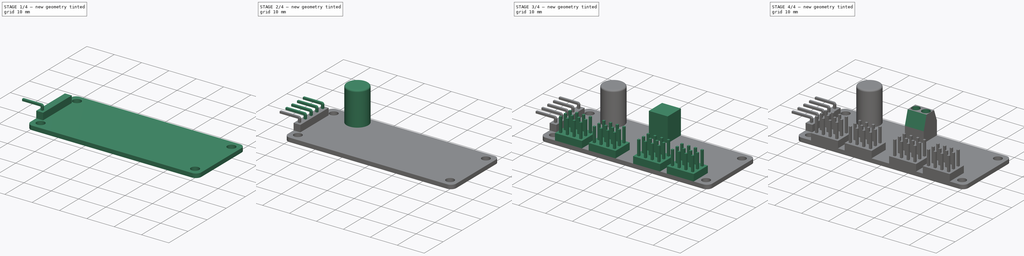
[diagram: build sequence overview — one tinted view per stage of 4, left to right]
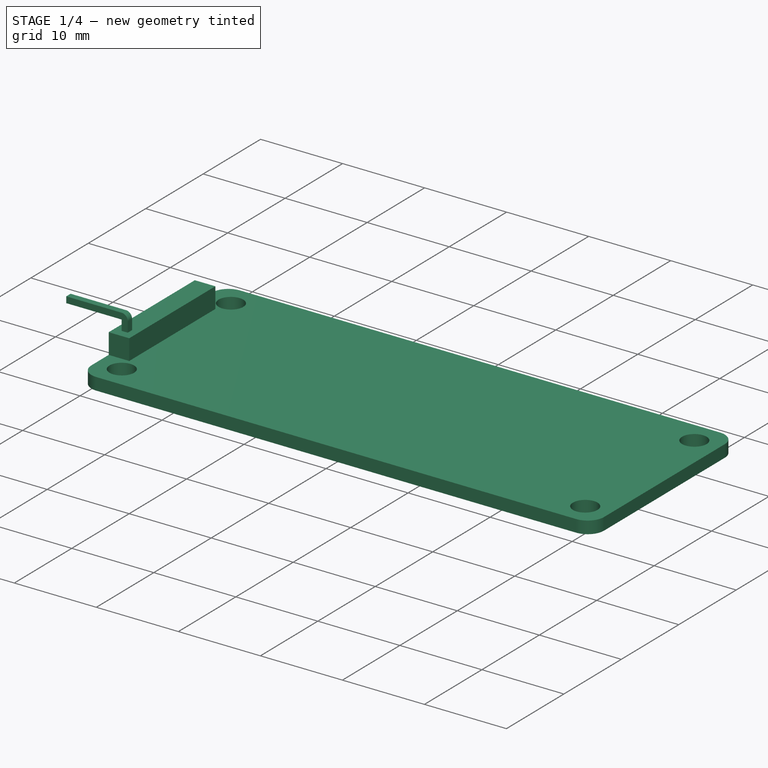
[diagram: stage 1 of 4 — iso view after this stage's code; geometry added in this stage tinted green]
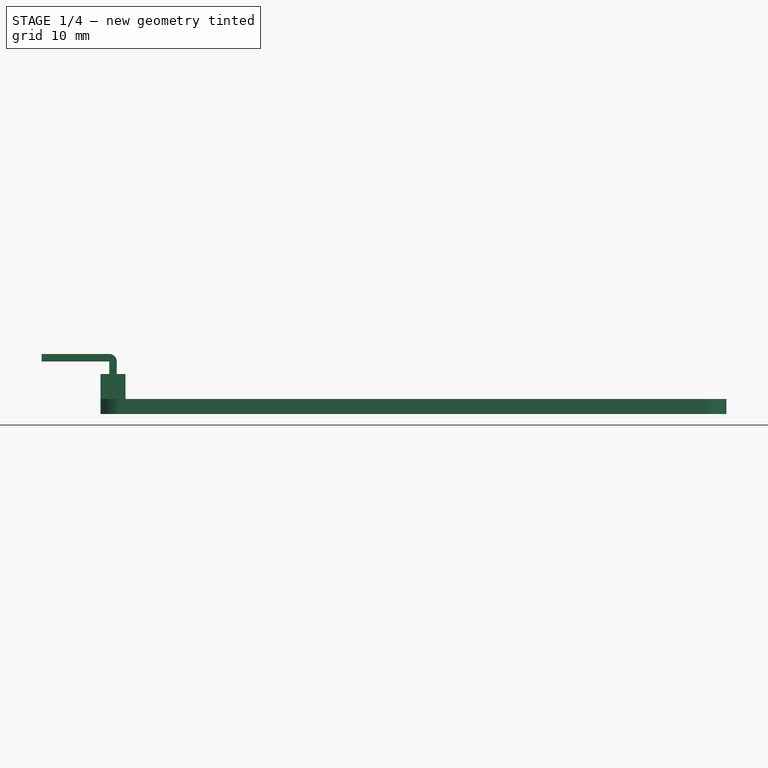
[diagram: stage 1 of 4 — front view after this stage's code; geometry added in this stage tinted green]
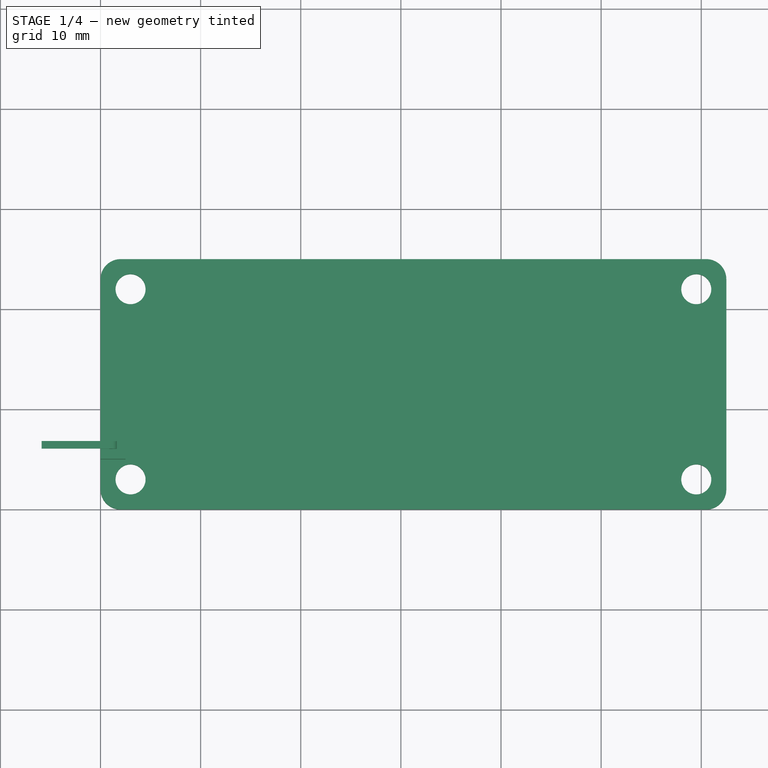
[diagram: stage 1 of 4 — top view after this stage's code; geometry added in this stage tinted green]
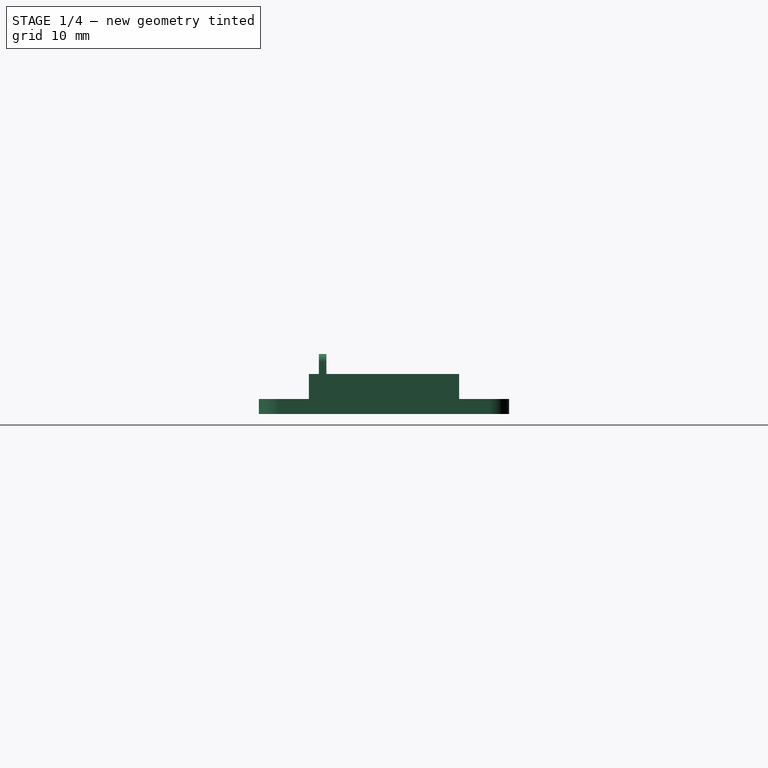
[diagram: stage 1 of 4 — right view after this stage's code; geometry added in this stage tinted green]
FCSTD DOCUMENT  (FreeCAD 1.0R39285 (Git))
Label: Servo-PCB
License: All rights reserved
LicenseURL: https://en.wikipedia.org/wiki/All_rights_reserved
objects: Sketcher::SketchObject×8, PartDesign::Pad×7, PartDesign::LinearPattern×5, PartDesign::Chamfer×2, PartDesign::Fillet×1, PartDesign::MultiTransform×1, PartDesign::Pocket×1, PartDesign::Body×1
note: 62 computed .brp shape members not serialized (recipe doc carries the construction recipe); baked Part::Feature solids carry a one-line shape summary decoded from their .brp

FEATURE [Sketcher::SketchObject] Sketch
  ArcFitTolerance = 1e-06
  AttachmentSupport = -> [XY_Plane]
  FullyConstrained = true
  MakeInternals = false
  MapMode = 5
  sketch-geometry (20):
    g0: LineSegment StartX=2 StartY=0 StartZ=0 EndX=60.5 EndY=0 EndZ=0
    g1: LineSegment StartX=62.5 StartY=2 StartZ=0 EndX=62.5 EndY=23 EndZ=0
    g2: LineSegment StartX=60.5 StartY=25 StartZ=0 EndX=2 EndY=25 EndZ=0
    g3: LineSegment StartX=0 StartY=23 StartZ=0 EndX=0 EndY=2 EndZ=0
    g4: ArcOfCircle CenterX=2 CenterY=23 CenterZ=0 NormalX=0 NormalY=0 NormalZ=1 AngleXU=0 Radius=2 StartAngle=1.5708 EndAngle=3.14159
    g5: GeomPoint [constr] X=0 Y=25 Z=0
    g6: ArcOfCircle CenterX=2 CenterY=2 CenterZ=0 NormalX=0 NormalY=0 NormalZ=1 AngleXU=0 Radius=2 StartAngle=3.14159 EndAngle=4.71239
    g7: GeomPoint [constr] X=0 Y=0 Z=0
    g8: ArcOfCircle CenterX=60.5 CenterY=2 CenterZ=0 NormalX=0 NormalY=0 NormalZ=1 AngleXU=0 Radius=2 StartAngle=4.71239 EndAngle=6.28319
    g9: GeomPoint [constr] X=62.5 Y=0 Z=0
    g10: ArcOfCircle CenterX=60.5 CenterY=23 CenterZ=0 NormalX=0 NormalY=0 NormalZ=1 AngleXU=0 Radius=2 StartAngle=0 EndAngle=1.5708
    g11: GeomPoint [constr] X=62.5 Y=25 Z=0
    g12: Circle CenterX=3 CenterY=3 CenterZ=0 NormalX=0 NormalY=0 NormalZ=1 AngleXU=0 Radius=1.5
    g13: Circle CenterX=3 CenterY=22 CenterZ=0 NormalX=0 NormalY=0 NormalZ=1 AngleXU=0 Radius=1.5
    g14: Circle CenterX=59.5 CenterY=22 CenterZ=0 NormalX=0 NormalY=0 NormalZ=1 AngleXU=0 Radius=1.5
    g15: Circle CenterX=59.5 CenterY=3 CenterZ=0 NormalX=0 NormalY=0 NormalZ=1 AngleXU=0 Radius=1.5
    g16: LineSegment [constr] StartX=1.5 StartY=3 StartZ=0 EndX=0 EndY=3 EndZ=0
    g17: LineSegment [constr] StartX=61 StartY=3 StartZ=0 EndX=62.5 EndY=3 EndZ=0
    g18: LineSegment [constr] StartX=3 StartY=1.5 StartZ=0 EndX=3 EndY=0 EndZ=0
    g19: LineSegment [constr] StartX=3 StartY=23.5 StartZ=0 EndX=3 EndY=25 EndZ=0
  constraints (55):
    c: Horizontal(g0)
    c: Horizontal(g2)
    c: Vertical(g1)
    c: Vertical(g3)
    c: Coincident(g7,g-1)
    c: PointOnObject(g5,g2)
    c: PointOnObject(g5,g3)
    c: Tangent(g2,g4) = -1.5708
    c: Tangent(g3,g4) = -1.5708
    c: PointOnObject(g7,g3)
    c: PointOnObject(g7,g0)
    c: Tangent(g3,g6) = -1.5708
    c: Tangent(g0,g6) = -1.5708
    c: PointOnObject(g9,g0)
    c: PointOnObject(g9,g1)
    c: Tangent(g0,g8) = -1.5708
    c: Tangent(g1,g8) = -1.5708
    c: PointOnObject(g11,g1)
    c: PointOnObject(g11,g2)
    c: Tangent(g1,g10) = -1.5708
    c: Tangent(g2,g10) = -1.5708
    c: Equal(g4,g10)
    c: Equal(g10,g8)
    c: Equal(g8,g6)
    c: DistanceY(g0,g2) = 25
    c: DistanceX(g3,g1) = 62.5
    c: Diameter(g4) = 4
    c: Equal(g15,g14)
    c: Equal(g14,g13)
    c: Equal(g13,g12)
    c: Vertical(g12,g13)
    c: Vertical(g14,g15)
    c: Horizontal(g15,g12)
    c: Horizontal(g13,g14)
    c: Diameter(g12) = 3
    c: PointOnObject(g16,g12)
    c: PointOnObject(g16,g3)
    c: Horizontal(g16)
    c: PointOnObject(g17,g15)
    c: PointOnObject(g17,g1)
    c: Horizontal(g17)
    c: Horizontal(g17,g15)
    c: Horizontal(g16,g12)
    c: Equal(g16,g17)
    c: DistanceX(g17,g17) = 1.5
    c: PointOnObject(g18,g12)
    c: PointOnObject(g18,g0)
    c: Vertical(g18)
    c: Vertical(g18,g12)
    c: PointOnObject(g19,g13)
    c: PointOnObject(g19,g2)
    c: Vertical(g19)
    c: Vertical(g19,g13)
    c: DistanceY(g19,g19) = 1.5
    c: Equal(g18,g19)
FEATURE [PartDesign::Pad] Pad
  Direction = (0,0,1)
  Length = 1.5
  Length2 = 10
  Profile = -> Sketch
  ReferenceAxis = -> Sketch [N_Axis]
  Refine = true
  Suppressed = false
  Type = 0
FEATURE [Sketcher::SketchObject] Sketch001
  ArcFitTolerance = 1e-06
  AttachmentSupport = -> [Pad]
  ExternalGeometry = -> [Pad]
  FullyConstrained = true
  MakeInternals = false
  MapMode = 5
  Placement = pos=(0,0,1.5) rot=(0,0,1;0rad)
  sketch-geometry (6):
    g0: LineSegment StartX=2e-16 StartY=20 StartZ=0 EndX=2e-16 EndY=5 EndZ=0
    g1: LineSegment StartX=2e-16 StartY=5 StartZ=0 EndX=2.5 EndY=5 EndZ=0
    g2: LineSegment StartX=2.5 StartY=5 StartZ=0 EndX=2.5 EndY=20 EndZ=0
    g3: LineSegment StartX=2.5 StartY=20 StartZ=0 EndX=0 EndY=20 EndZ=0
    g4: GeomPoint [constr] X=0 Y=12.5 Z=0
    g5: GeomPoint [constr] X=0 Y=12.5 Z=0
  constraints (13):
    c: Coincident(g0,g1)
    c: Coincident(g1,g2)
    c: Coincident(g2,g3)
    c: Coincident(g3,g0)
    c: Vertical(g0)
    c: Vertical(g2)
    c: Horizontal(g1)
    c: Horizontal(g3)
    c: Distance(g0,g2) = 2.5
    c: Distance(g1,g3) = 15
    c: Symmetric(g0,g0,g4)
    c: Symmetric(g-3,g-3,g5)
    c: Coincident(g4,g5)
FEATURE [PartDesign::Pad] Pad001
  BaseFeature = -> Pad
  Direction = (0,0,1)
  Length = 2.5
  Length2 = 10
  Profile = -> Sketch001
  ReferenceAxis = -> Sketch001 [N_Axis]
  Refine = true
  Suppressed = false
  Type = 0
FEATURE [Sketcher::SketchObject] Sketch002
  ArcFitTolerance = 1e-06
  AttachmentOffset = pos=(0,0,-6) rot=(0,0,1;0rad)
  AttachmentSupport = -> [XZ_Plane]
  ExternalGeometry = -> [Pad001]
  FullyConstrained = true
  MakeInternals = false
  MapMode = 5
  Placement = pos=(0,6,-1.3e-15) rot=(1,0,0;1.5708rad)
  sketch-geometry (8):
    g0: LineSegment StartX=0.875 StartY=4 StartZ=0 EndX=1.625 EndY=4 EndZ=0
    g1: LineSegment StartX=1.625 StartY=4 StartZ=0 EndX=1.625 EndY=5.25 EndZ=0
    g2: LineSegment StartX=0.875 StartY=5.25 StartZ=0 EndX=0.875 EndY=4 EndZ=0
    g3: LineSegment StartX=-5.875 StartY=6 StartZ=0 EndX=-5.875 EndY=5.25 EndZ=0
    g4: LineSegment StartX=-5.875 StartY=5.25 StartZ=0 EndX=0.875 EndY=5.25 EndZ=0
    g5: LineSegment StartX=0.875 StartY=6 StartZ=0 EndX=-5.875 EndY=6 EndZ=0
    g6: ArcOfCircle CenterX=0.875 CenterY=5.25 CenterZ=0 NormalX=0 NormalY=0 NormalZ=1 AngleXU=0 Radius=0.75 StartAngle=1e-16 EndAngle=1.5708
    g7: GeomPoint [constr] X=1.25 Y=4 Z=0
  constraints (21):
    c: Coincident(g0,g1)
    c: Coincident(g2,g0)
    c: Horizontal(g0)
    c: Vertical(g1)
    c: Vertical(g2)
    c: Coincident(g3,g4)
    c: Coincident(g5,g3)
    c: Vertical(g3)
    c: Horizontal(g5)
    c: Coincident(g2,g4)
    c: Coincident(g2,g6)
    c: Coincident(g5,g6)
    c: Coincident(g1,g6)
    c: Horizontal(g4)
    c: DistanceY(g0,g5) = 2
    c: DistanceY(g3,g3) = 0.75
    c: Vertical(g2,g5)
    c: Horizontal(g1,g2)
    c: Symmetric(g0,g0,g7)
    c: Symmetric(g-3,g-3,g7)
    c: DistanceX(g3,g1) = 7.5
FEATURE [PartDesign::Pad] Pad002
  BaseFeature = -> Pad001
  Direction = (0,-1,2e-16)
  Length = 0.75
  Length2 = 10
  Profile = -> Sketch002
  ReferenceAxis = -> Sketch002 [N_Axis]
  Refine = true
  Reversed = true
  Suppressed = false
  Type = 0
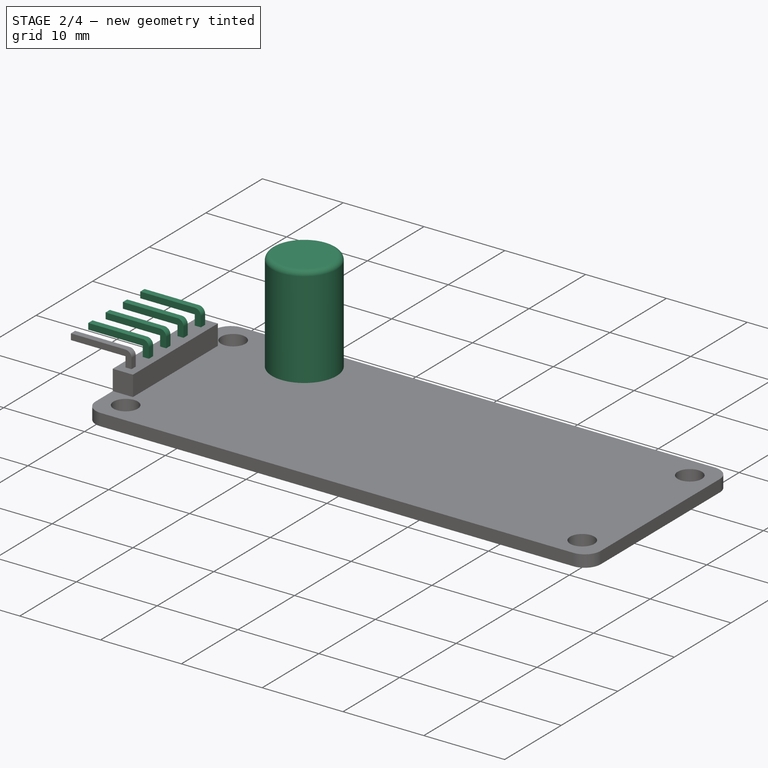
[diagram: stage 2 of 4 — iso view after this stage's code; geometry added in this stage tinted green]
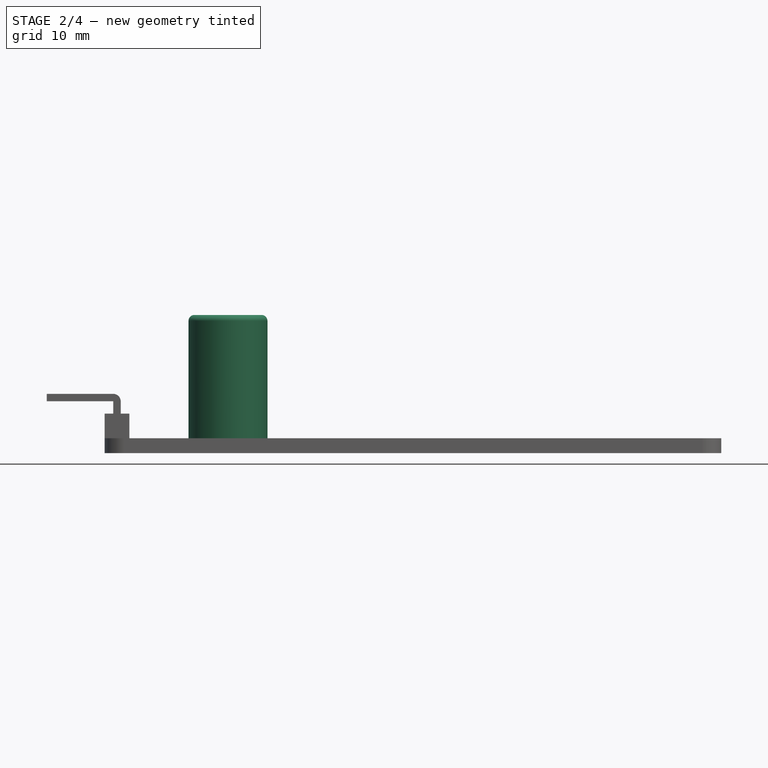
[diagram: stage 2 of 4 — front view after this stage's code; geometry added in this stage tinted green]
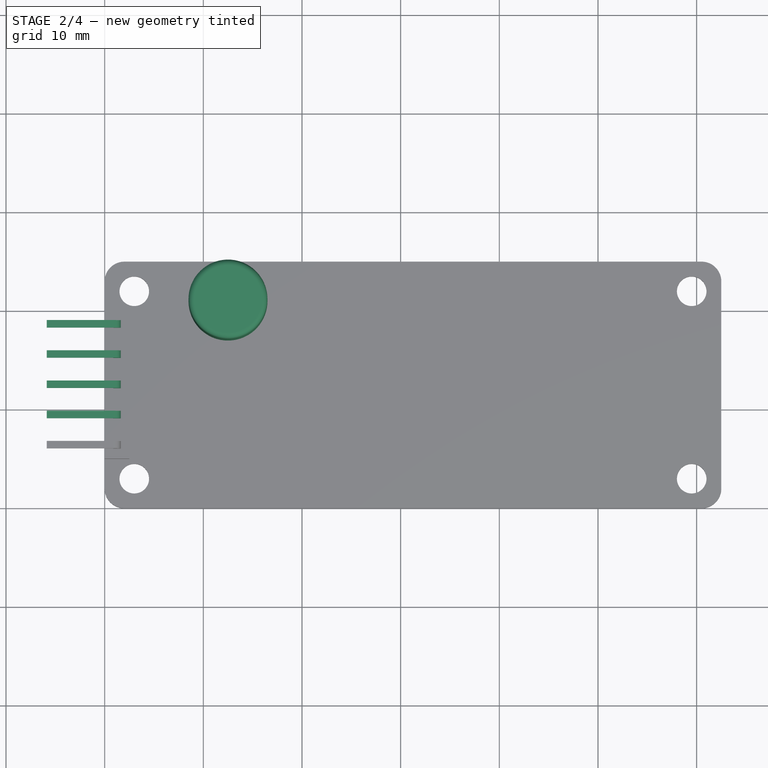
[diagram: stage 2 of 4 — top view after this stage's code; geometry added in this stage tinted green]
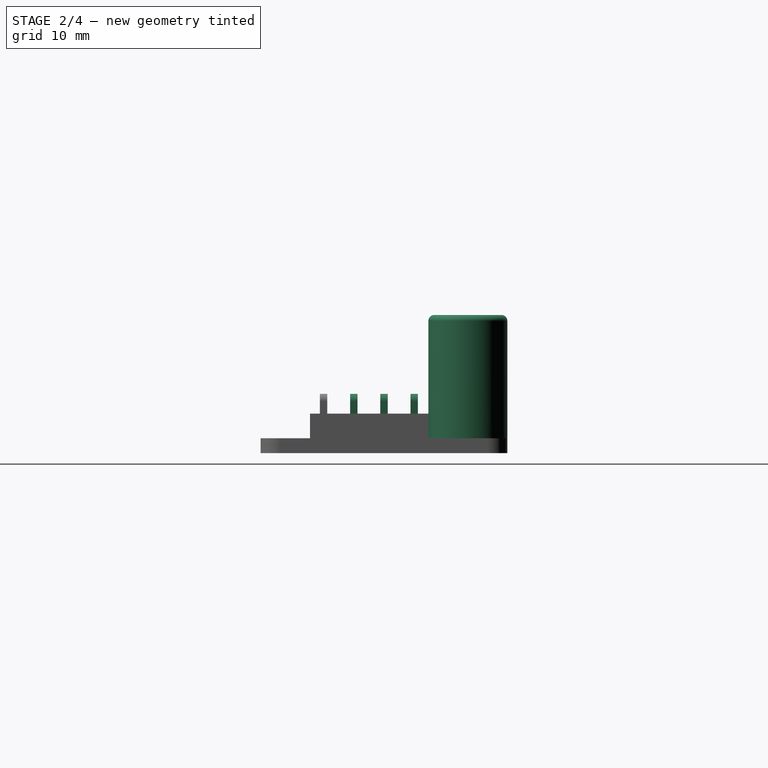
[diagram: stage 2 of 4 — right view after this stage's code; geometry added in this stage tinted green]
FEATURE [PartDesign::LinearPattern] LinearPattern
  BaseFeature = -> Pad002
  Direction = -> Sketch002 [N_Axis]
  Length = 12.25
  Mode = 0
  Occurrences = 5
  Offset = 3.0625
  Originals = -> [Pad002]
  Refine = true
  Reversed = true
  Suppressed = false
  TransformMode = 0
FEATURE [Sketcher::SketchObject] Sketch003
  ArcFitTolerance = 1e-06
  AttachmentSupport = -> [LinearPattern]
  ExternalGeometry = -> [LinearPattern]
  FullyConstrained = true
  MakeInternals = false
  MapMode = 5
  Placement = pos=(0,0,1.5) rot=(0,0,1;0rad)
  sketch-geometry (4):
    g0: Circle CenterX=12.5 CenterY=21 CenterZ=0 NormalX=0 NormalY=0 NormalZ=1 AngleXU=0 Radius=4
    g1: GeomPoint X=12.5 Y=25 Z=0
    g2: GeomPoint X=12.5 Y=25 Z=0
    g3: GeomPoint X=8.5 Y=21 Z=0
  constraints (8):
    c: Diameter(g0) = 8
    c: PointOnObject(g1,g-3)
    c: PointOnObject(g2,g0)
    c: Vertical(g2,g0)
    c: Coincident(g2,g1)
    c: PointOnObject(g3,g0)
    c: Horizontal(g3,g0)
    c: DistanceX(g-1,g3) = 8.5
FEATURE [PartDesign::Pad] Pad003
  BaseFeature = -> LinearPattern
  Direction = (0,0,1)
  Length = 12.5
  Length2 = 10
  Profile = -> Sketch003
  ReferenceAxis = -> Sketch003 [N_Axis]
  Refine = true
  Suppressed = false
  Type = 0
FEATURE [PartDesign::Fillet] Fillet
  Base = -> Pad003 [Edge53]
  BaseFeature = -> Pad003
  Radius = 0.6
  Refine = true
  SupportTransform = false
  Suppressed = false
  UseAllEdges = false
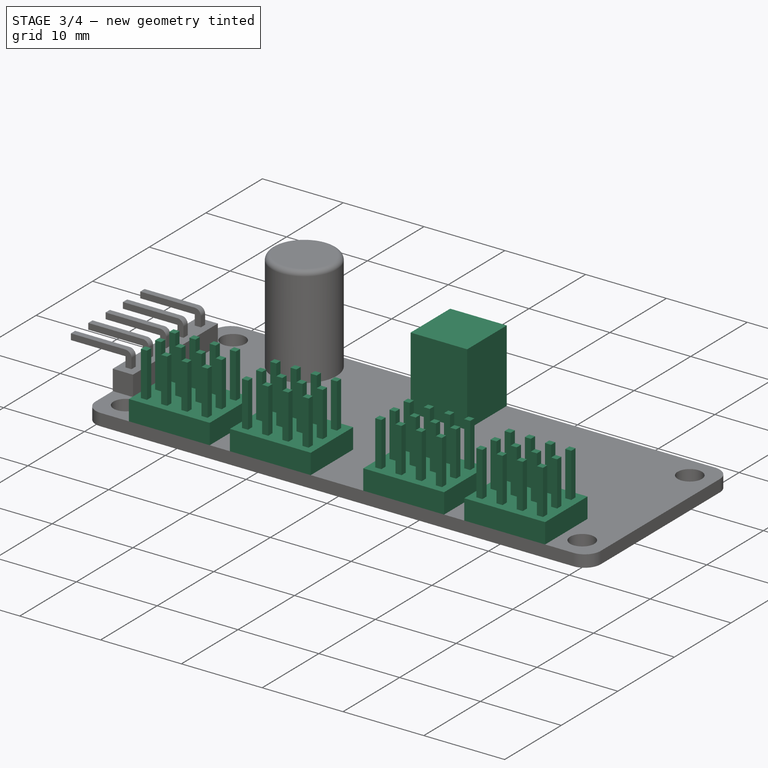
[diagram: stage 3 of 4 — iso view after this stage's code; geometry added in this stage tinted green]
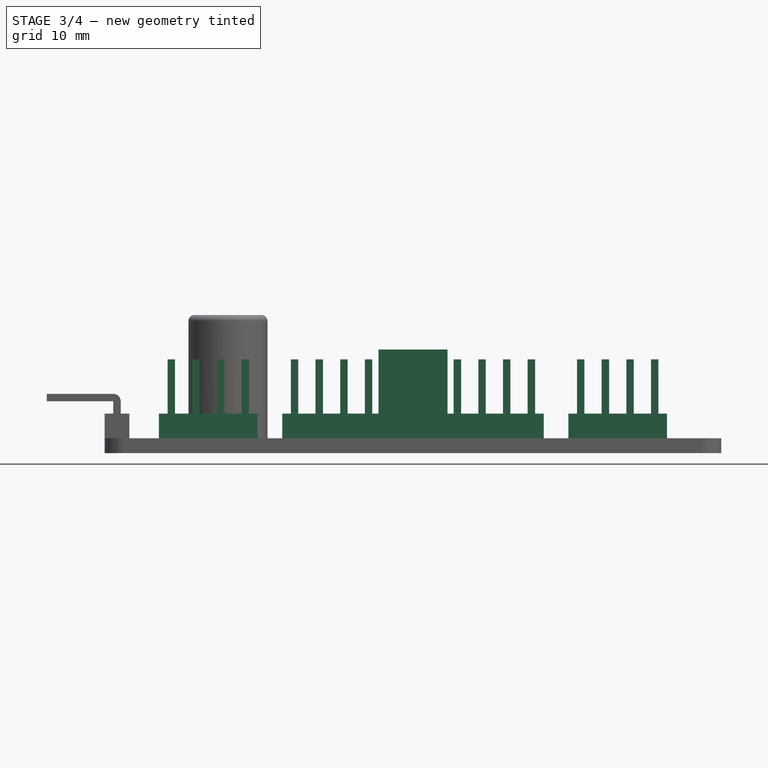
[diagram: stage 3 of 4 — front view after this stage's code; geometry added in this stage tinted green]
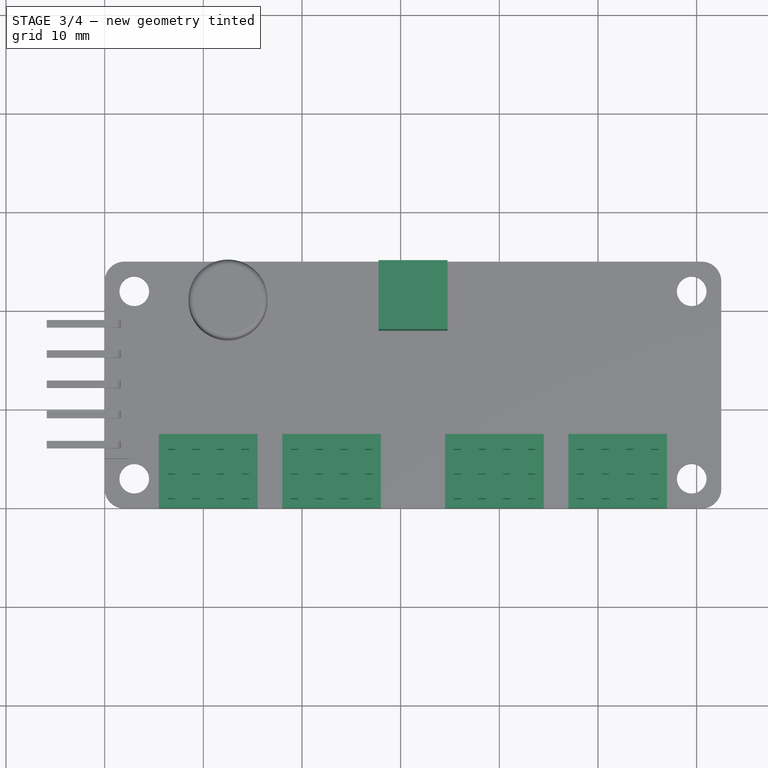
[diagram: stage 3 of 4 — top view after this stage's code; geometry added in this stage tinted green]
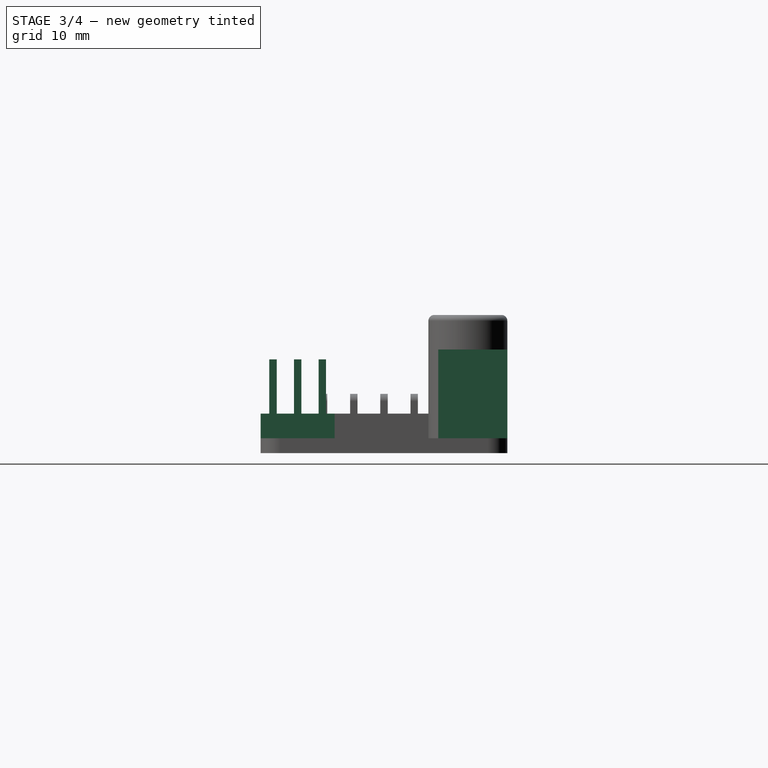
[diagram: stage 3 of 4 — right view after this stage's code; geometry added in this stage tinted green]
FEATURE [Sketcher::SketchObject] Sketch004
  ArcFitTolerance = 1e-06
  AttachmentOffset = pos=(5.5,0,0) rot=(0,0,1;0rad)
  AttachmentSupport = -> [Fillet]
  FullyConstrained = true
  MakeInternals = false
  MapMode = 5
  Placement = pos=(5.5,0,1.5) rot=(0,0,1;0rad)
  sketch-geometry (4):
    g0: LineSegment StartX=0 StartY=0 StartZ=0 EndX=2.5 EndY=0 EndZ=0
    g1: LineSegment StartX=2.5 StartY=0 StartZ=0 EndX=2.5 EndY=2.5 EndZ=0
    g2: LineSegment StartX=2.5 StartY=2.5 StartZ=0 EndX=0 EndY=2.5 EndZ=0
    g3: LineSegment StartX=0 StartY=2.5 StartZ=0 EndX=0 EndY=0 EndZ=0
  constraints (11):
    c: Coincident(g0,g1)
    c: Coincident(g1,g2)
    c: Coincident(g2,g3)
    c: Coincident(g3,g0)
    c: Horizontal(g0)
    c: Horizontal(g2)
    c: Vertical(g1)
    c: Vertical(g3)
    c: Distance(g1,g3) = 2.5
    c: Distance(g0,g2) = 2.5
    c: Coincident(g0,g-1)
FEATURE [PartDesign::Pad] Pad004
  BaseFeature = -> Fillet
  Direction = (0,0,1)
  Length = 2.5
  Length2 = 10
  Profile = -> Sketch004
  ReferenceAxis = -> Sketch004 [N_Axis]
  Refine = true
  Suppressed = false
  Type = 0
FEATURE [Sketcher::SketchObject] Sketch005
  ArcFitTolerance = 1e-06
  AttachmentSupport = -> [Pad004]
  ExternalGeometry = -> [Pad004]
  FullyConstrained = true
  MakeInternals = false
  MapMode = 5
  Placement = pos=(0,0,4) rot=(0,0,1;0rad)
  sketch-geometry (5):
    g0: LineSegment StartX=6.375 StartY=1.625 StartZ=0 EndX=6.375 EndY=0.875 EndZ=0
    g1: LineSegment StartX=6.375 StartY=0.875 StartZ=0 EndX=7.125 EndY=0.875 EndZ=0
    g2: LineSegment StartX=7.125 StartY=0.875 StartZ=0 EndX=7.125 EndY=1.625 EndZ=0
    g3: LineSegment StartX=7.125 StartY=1.625 StartZ=0 EndX=6.375 EndY=1.625 EndZ=0
    g4: GeomPoint X=6.75 Y=1.25 Z=0
  constraints (12):
    c: Coincident(g0,g1)
    c: Coincident(g1,g2)
    c: Coincident(g2,g3)
    c: Coincident(g3,g0)
    c: Vertical(g0)
    c: Vertical(g2)
    c: Horizontal(g1)
    c: Horizontal(g3)
    c: Distance(g0,g2) = 0.75
    c: Equal(g3,g0)
    c: Symmetric(g0,g2,g4)
    c: Symmetric(g-3,g-4,g4)
FEATURE [PartDesign::Pad] Pad005
  BaseFeature = -> Pad004
  Direction = (0,0,1)
  Length = 5.5
  Length2 = 10
  Profile = -> Sketch005
  ReferenceAxis = -> Sketch005 [N_Axis]
  Refine = true
  Suppressed = false
  Type = 0
FEATURE [PartDesign::LinearPattern] LinearPattern001
  Direction = -> Sketch005 [H_Axis]
  Length = 7.5
  Mode = 0
  Occurrences = 4
  Offset = 2.5
  Refine = true
  Suppressed = false
  TransformMode = 0
FEATURE [PartDesign::LinearPattern] LinearPattern002
  Direction = -> Sketch005 [V_Axis]
  Length = 5
  Mode = 0
  Occurrences = 3
  Offset = 2.5
  Refine = true
  Suppressed = false
  TransformMode = 0
FEATURE [PartDesign::LinearPattern] LinearPattern003
  Direction = -> Sketch005 [H_Axis]
  Length = 12.5
  Mode = 0
  Occurrences = 2
  Offset = 12.5
  Refine = true
  Suppressed = false
  TransformMode = 0
FEATURE [PartDesign::LinearPattern] LinearPattern004
  Direction = -> Sketch005 [H_Axis]
  Length = 29
  Mode = 0
  Occurrences = 2
  Offset = 29
  Refine = true
  Suppressed = false
  TransformMode = 0
FEATURE [PartDesign::MultiTransform] MultiTransform
  BaseFeature = -> Pad005
  Originals = -> [Pad005,Pad004]
  Refine = true
  Suppressed = false
  TransformMode = 0
  Transformations = -> [LinearPattern001,LinearPattern004,LinearPattern002,LinearPattern003]
FEATURE [Sketcher::SketchObject] Sketch006
  ArcFitTolerance = 1e-06
  AttachmentSupport = -> [MultiTransform]
  ExternalGeometry = -> [MultiTransform]
  FullyConstrained = true
  MakeInternals = false
  MapMode = 5
  Placement = pos=(0,0,1.5) rot=(0,0,1;0rad)
  sketch-geometry (7):
    g0: LineSegment StartX=27.75 StartY=25 StartZ=0 EndX=27.75 EndY=18 EndZ=0
    g1: LineSegment StartX=27.75 StartY=18 StartZ=0 EndX=34.75 EndY=18 EndZ=0
    g2: LineSegment StartX=34.75 StartY=18 StartZ=0 EndX=34.75 EndY=25 EndZ=0
    g3: LineSegment StartX=34.75 StartY=25 StartZ=0 EndX=27.75 EndY=25 EndZ=0
    g4: GeomPoint X=31.25 Y=25 Z=0
    g5: GeomPoint X=62.5 Y=25 Z=0
    g6: GeomPoint X=0 Y=25 Z=0
  constraints (16):
    c: Coincident(g0,g1)
    c: Coincident(g1,g2)
    c: Coincident(g2,g3)
    c: Coincident(g3,g0)
    c: Vertical(g0)
    c: Vertical(g2)
    c: Horizontal(g1)
    c: Horizontal(g3)
    c: Distance(g0,g2) = 7
    c: Distance(g1,g3) = 7
    c: PointOnObject(g0,g-3)
    c: Symmetric(g3,g3,g4)
    c: Vertical(g5,g-4)
    c: Horizontal(g5,g-3)
    c: PointOnObject(g6,g-2)
    c: Symmetric(g6,g5,g4)
FEATURE [PartDesign::Pad] Pad006
  BaseFeature = -> MultiTransform
  Direction = (0,0,1)
  Length = 9
  Length2 = 10
  Profile = -> Sketch006
  ReferenceAxis = -> Sketch006 [N_Axis]
  Refine = true
  Suppressed = false
  Type = 0
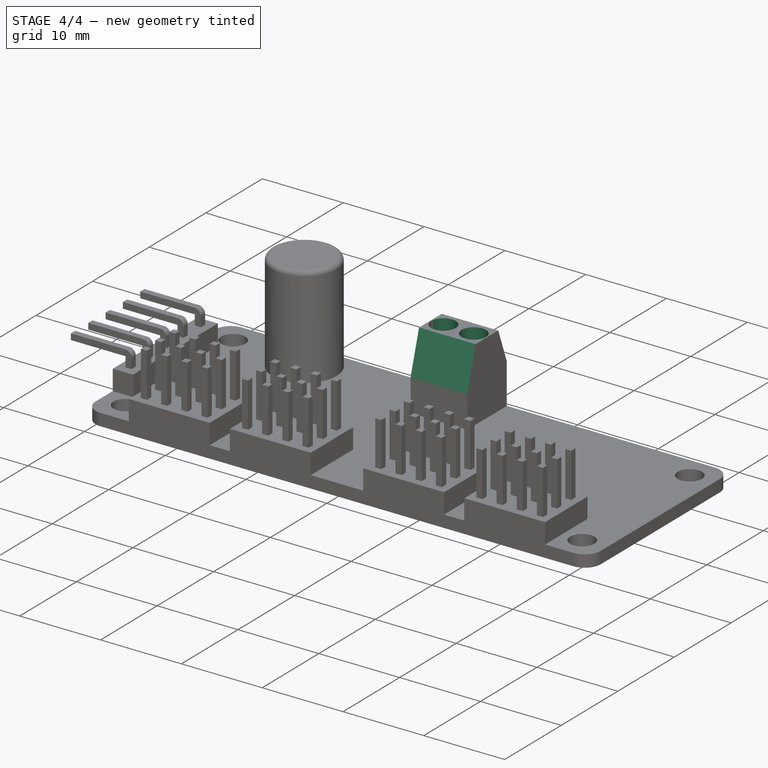
[diagram: stage 4 of 4 — iso view after this stage's code; geometry added in this stage tinted green]
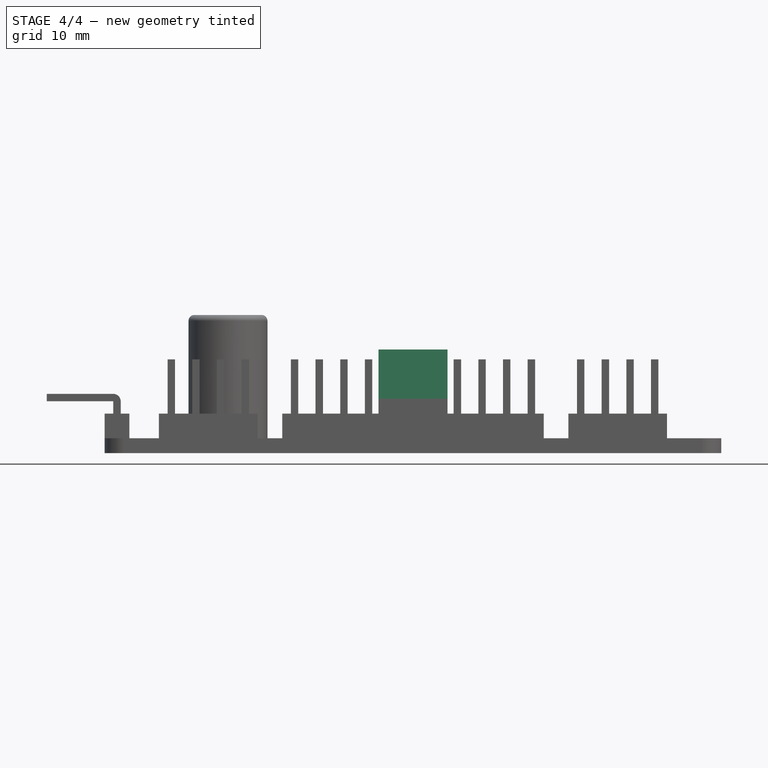
[diagram: stage 4 of 4 — front view after this stage's code; geometry added in this stage tinted green]
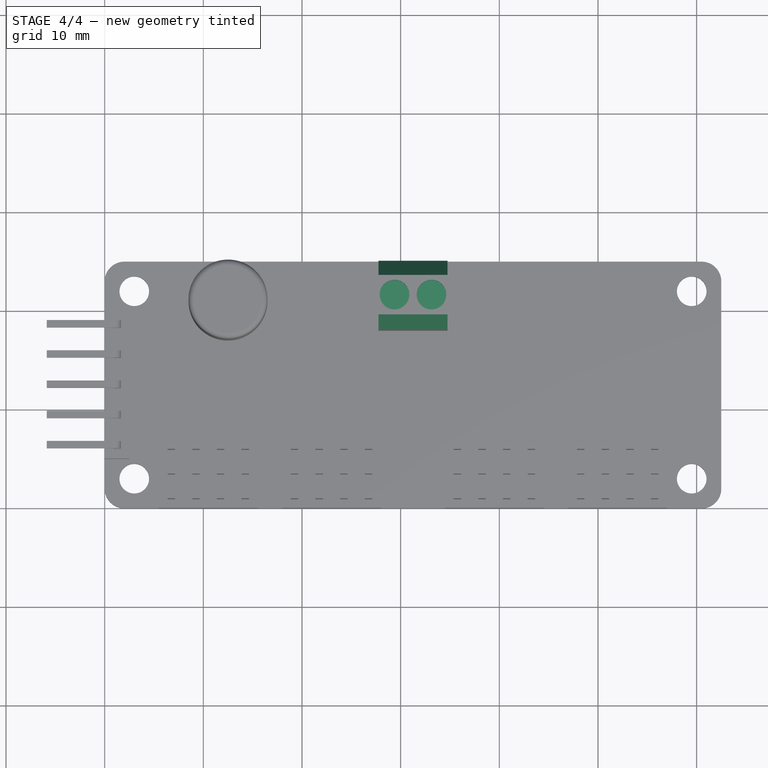
[diagram: stage 4 of 4 — top view after this stage's code; geometry added in this stage tinted green]
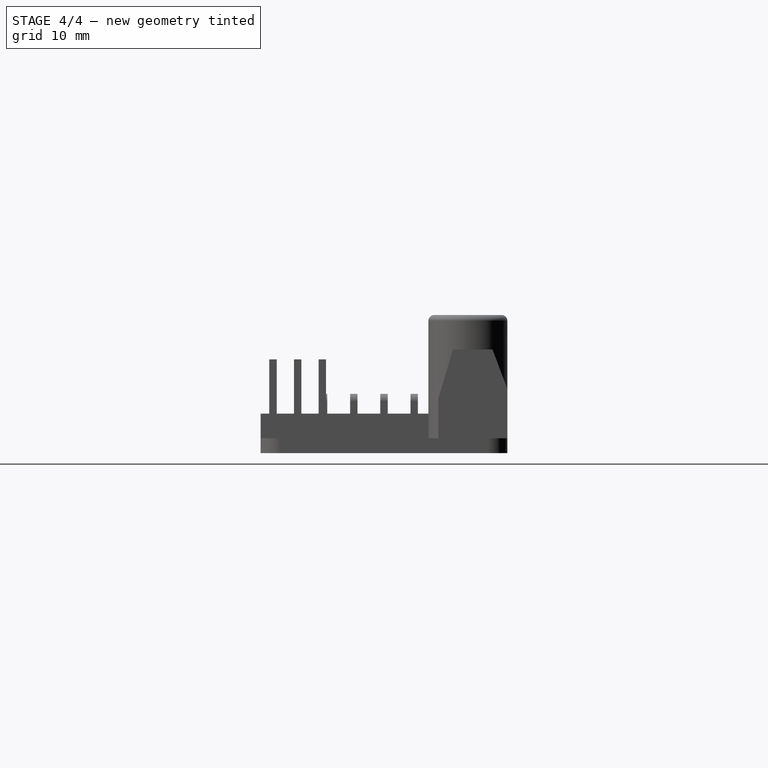
[diagram: stage 4 of 4 — right view after this stage's code; geometry added in this stage tinted green]
FEATURE [PartDesign::Chamfer] Chamfer
  Angle = 45
  Base = -> Pad006 [Edge61]
  BaseFeature = -> Pad006
  ChamferType = 1
  FlipDirection = false
  Refine = true
  Size = 5
  Size2 = 1.5
  SupportTransform = false
  Suppressed = false
  UseAllEdges = false
FEATURE [PartDesign::Chamfer] Chamfer001
  Angle = 45
  Base = -> Chamfer [Edge48]
  BaseFeature = -> Chamfer
  ChamferType = 1
  FlipDirection = false
  Refine = true
  Size = 1.5
  Size2 = 4
  SupportTransform = false
  Suppressed = false
  UseAllEdges = false
FEATURE [Sketcher::SketchObject] Sketch007
  ArcFitTolerance = 1e-06
  AttachmentSupport = -> [Chamfer001]
  ExternalGeometry = -> [Chamfer001]
  FullyConstrained = true
  MakeInternals = false
  MapMode = 5
  Placement = pos=(0,0,10.5) rot=(0,0,1;0rad)
  sketch-geometry (7):
    g0: Circle CenterX=29.375 CenterY=21.5 CenterZ=0 NormalX=0 NormalY=0 NormalZ=1 AngleXU=0 Radius=1.5
    g1: Circle CenterX=33.125 CenterY=21.5 CenterZ=0 NormalX=0 NormalY=0 NormalZ=1 AngleXU=0 Radius=1.5
    g2: LineSegment [constr] StartX=30.875 StartY=21.5 StartZ=0 EndX=31.625 EndY=21.5 EndZ=0
    g3: LineSegment [constr] StartX=29.375 StartY=21.5 StartZ=0 EndX=29.375 EndY=23.5 EndZ=0
    g4: LineSegment [constr] StartX=29.375 StartY=21.5 StartZ=0 EndX=29.375 EndY=19.5 EndZ=0
    g5: LineSegment [constr] StartX=29.375 StartY=21.5 StartZ=0 EndX=27.75 EndY=21.5 EndZ=0
    g6: LineSegment [constr] StartX=33.125 StartY=21.5 StartZ=0 EndX=34.75 EndY=21.5 EndZ=0
  constraints (20):
    c: Diameter(g0) = 3
    c: Equal(g0,g1)
    c: Horizontal(g0,g1)
    c: PointOnObject(g2,g0)
    c: PointOnObject(g2,g1)
    c: Horizontal(g2)
    c: Horizontal(g2,g0)
    c: DistanceX(g2,g2) = 0.75
    c: Coincident(g3,g0)
    c: PointOnObject(g3,g-3)
    c: Vertical(g3)
    c: Coincident(g4,g0)
    c: PointOnObject(g4,g-4)
    c: Vertical(g4)
    c: Equal(g3,g4)
    c: Coincident(g5,g0)
    c: Symmetric(g-5,g-5,g5)
    c: Coincident(g6,g1)
    c: Symmetric(g-6,g-6,g6)
    c: Equal(g6,g5)
FEATURE [PartDesign::Pocket] Pocket
  BaseFeature = -> Chamfer001
  Direction = (0,0,-1)
  Length = 1.5
  Length2 = 5
  Profile = -> Sketch007
  ReferenceAxis = -> Sketch007 [N_Axis]
  Refine = true
  Suppressed = false
  Type = 0
FEATURE [PartDesign::Body] Body  label="Körper"
  AllowCompound = false
  Group = -> [Sketch,Pad,Sketch001,Pad001,Sketch002,Pad002,LinearPattern,Sketch003,Pad003,Fillet,Sketch004,Pad004,Sketch005,Pad005,MultiTransform,LinearPattern001,LinearPattern002,LinearPattern003,LinearPattern004,Sketch006,Pad006,Chamfer,Chamfer001,Sketch007,Pocket]
  Origin = -> Origin
  Tip = -> Pocket
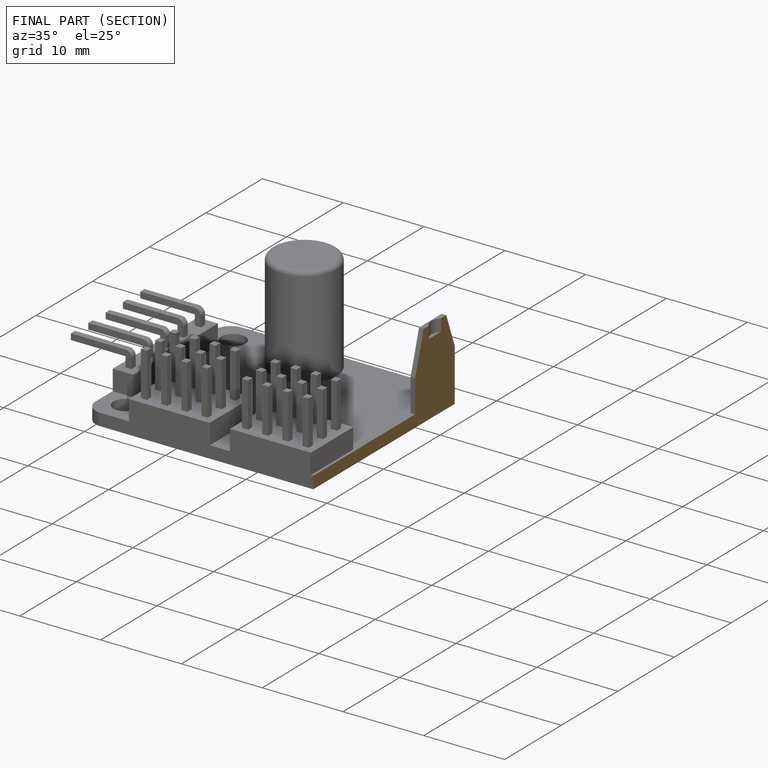
[diagram: finished part — half-section view (interior)]
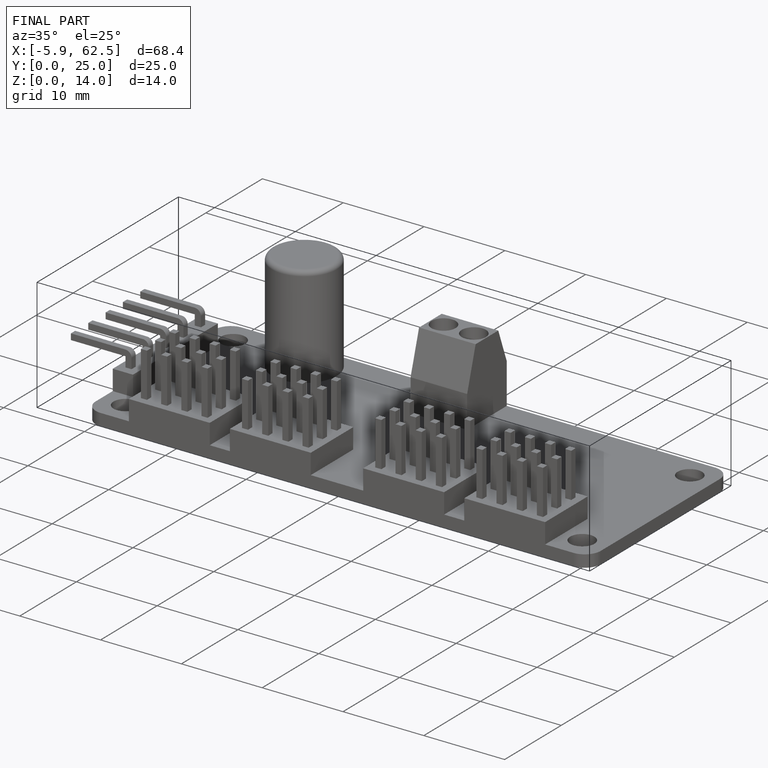
[diagram: finished part — iso view with bounding-box wireframe]
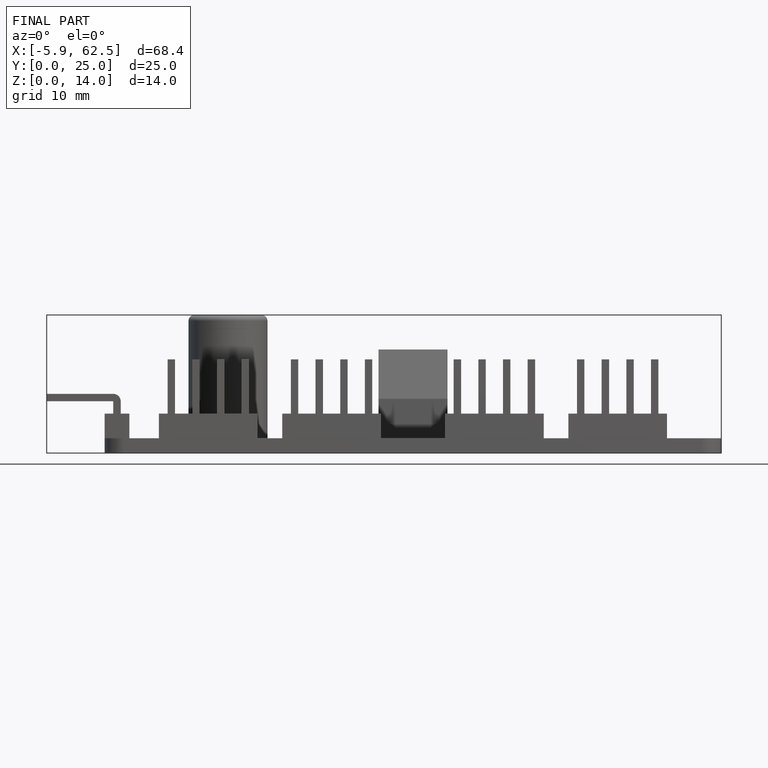
[diagram: finished part — front view with bounding-box wireframe]
